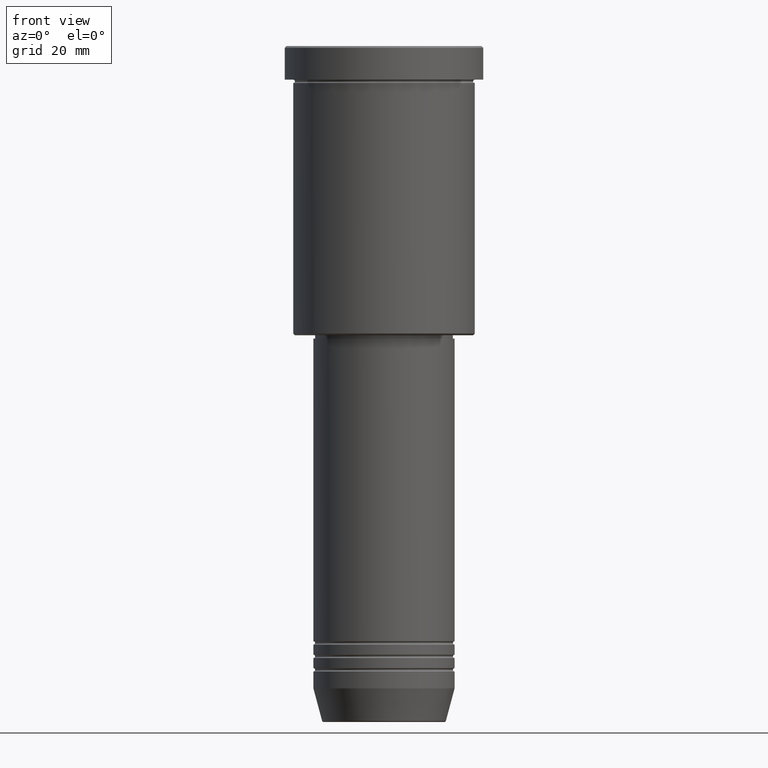
[diagram: clean part render]
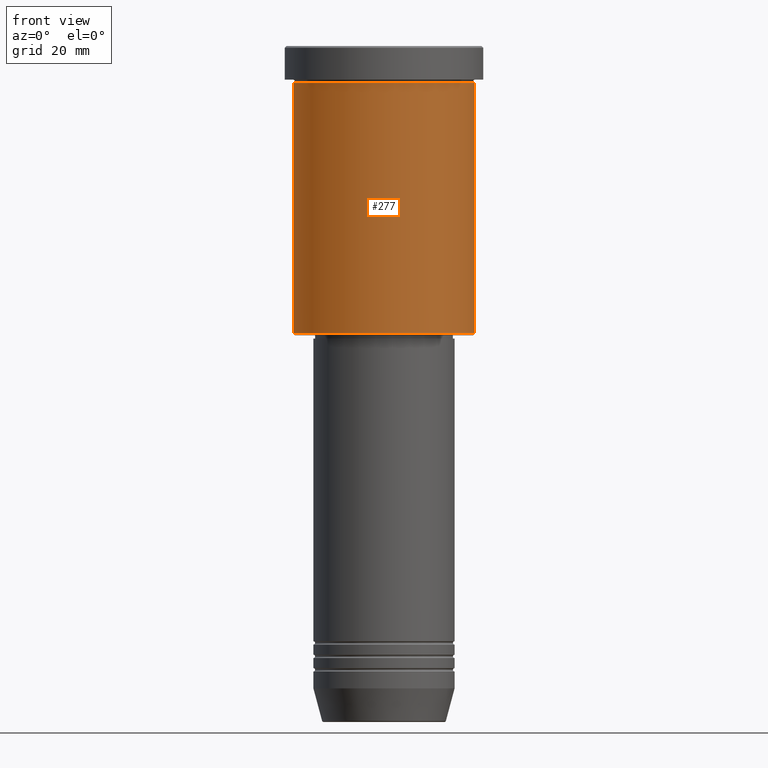
[diagram: same view with one face highlighted and labeled with its STEP entity id]
A machine part, front view. The second image highlights one B-rep face of the part: STEP entity #277.
In plain terms, the highlighted cylindrical surface (partial cylindrical patch) has radius 27 mm, axis along (-0, -0, 1).
Its self-contained STEP definition (entity closure, byte-faithful):
#34 = EDGE_CURVE ( 'NONE', #383, #618, #971, .T. ) ;
#63 = CYLINDRICAL_SURFACE ( 'NONE', #580, 27.00000000000000355 ) ;
#122 = VECTOR ( 'NONE', #267, 1000.000000000000000 ) ;
#143 = ORIENTED_EDGE ( 'NONE', *, *, #401, .T. ) ;
#196 = DIRECTION ( 'NONE',  ( -1.000000000000000000, 0.000000000000000000, 0.000000000000000000 ) ) ;
#267 = DIRECTION ( 'NONE',  ( -0.000000000000000000, -0.000000000000000000, 1.000000000000000000 ) ) ;
#277 = ADVANCED_FACE ( 'NONE', ( #706 ), #63, .T. ) ;
#292 = CARTESIAN_POINT ( 'NONE',  ( -27.00000000000000355, 3.306546357697854128E-15, -85.50000000000000000 ) ) ;
#362 = DIRECTION ( 'NONE',  ( -0.000000000000000000, -0.000000000000000000, 1.000000000000000000 ) ) ;
#381 = DIRECTION ( 'NONE',  ( -0.000000000000000000, -0.000000000000000000, 1.000000000000000000 ) ) ;
#383 = VERTEX_POINT ( 'NONE', #447 ) ;
#388 = EDGE_CURVE ( 'NONE', #605, #618, #751, .T. ) ;
#401 = EDGE_CURVE ( 'NONE', #1051, #383, #966, .T. ) ;
#426 = DIRECTION ( 'NONE',  ( 1.000000000000000000, 0.000000000000000000, 0.000000000000000000 ) ) ;
#447 = CARTESIAN_POINT ( 'NONE',  ( 27.00000000000000355, 0.000000000000000000, -85.50000000000000000 ) ) ;
#514 = ORIENTED_EDGE ( 'NONE', *, *, #876, .F. ) ;
#530 = LINE ( 'NONE', #1159, #122 ) ;
#580 = AXIS2_PLACEMENT_3D ( 'NONE', #1152, #886, #426 ) ;
#605 = VERTEX_POINT ( 'NONE', #760 ) ;
#618 = VERTEX_POINT ( 'NONE', #1140 ) ;
#625 = CARTESIAN_POINT ( 'NONE',  ( 27.00000000000000355, 0.000000000000000000, 0.000000000000000000 ) ) ;
#634 = DIRECTION ( 'NONE',  ( 1.000000000000000000, 0.000000000000000000, 0.000000000000000000 ) ) ;
#645 = ORIENTED_EDGE ( 'NONE', *, *, #388, .F. ) ;
#648 = CARTESIAN_POINT ( 'NONE',  ( 0.000000000000000000, 0.000000000000000000, -85.50000000000000000 ) ) ;
#706 = FACE_OUTER_BOUND ( 'NONE', #955, .T. ) ;
#719 = DIRECTION ( 'NONE',  ( -0.000000000000000000, -0.000000000000000000, 1.000000000000000000 ) ) ;
#751 = CIRCLE ( 'NONE', #946, 27.00000000000000355 ) ;
#760 = CARTESIAN_POINT ( 'NONE',  ( -27.00000000000000355, 3.306546357697854128E-15, -10.99999999999999289 ) ) ;
#815 = AXIS2_PLACEMENT_3D ( 'NONE', #648, #362, #196 ) ;
#876 = EDGE_CURVE ( 'NONE', #1051, #605, #530, .T. ) ;
#886 = DIRECTION ( 'NONE',  ( -0.000000000000000000, -0.000000000000000000, 1.000000000000000000 ) ) ;
#946 = AXIS2_PLACEMENT_3D ( 'NONE', #1102, #381, #634 ) ;
#955 = EDGE_LOOP ( 'NONE', ( #514, #143, #1098, #645 ) ) ;
#966 = CIRCLE ( 'NONE', #815, 27.00000000000000355 ) ;
#971 = LINE ( 'NONE', #625, #1030 ) ;
#1030 = VECTOR ( 'NONE', #719, 1000.000000000000000 ) ;
#1051 = VERTEX_POINT ( 'NONE', #292 ) ;
#1098 = ORIENTED_EDGE ( 'NONE', *, *, #34, .T. ) ;
#1102 = CARTESIAN_POINT ( 'NONE',  ( 0.000000000000000000, 0.000000000000000000, -10.99999999999999289 ) ) ;
#1140 = CARTESIAN_POINT ( 'NONE',  ( 27.00000000000000355, 0.000000000000000000, -10.99999999999999289 ) ) ;
#1152 = CARTESIAN_POINT ( 'NONE',  ( 0.000000000000000000, 0.000000000000000000, 0.000000000000000000 ) ) ;
#1159 = CARTESIAN_POINT ( 'NONE',  ( -27.00000000000000355, 3.306546357697854128E-15, 0.000000000000000000 ) ) ;